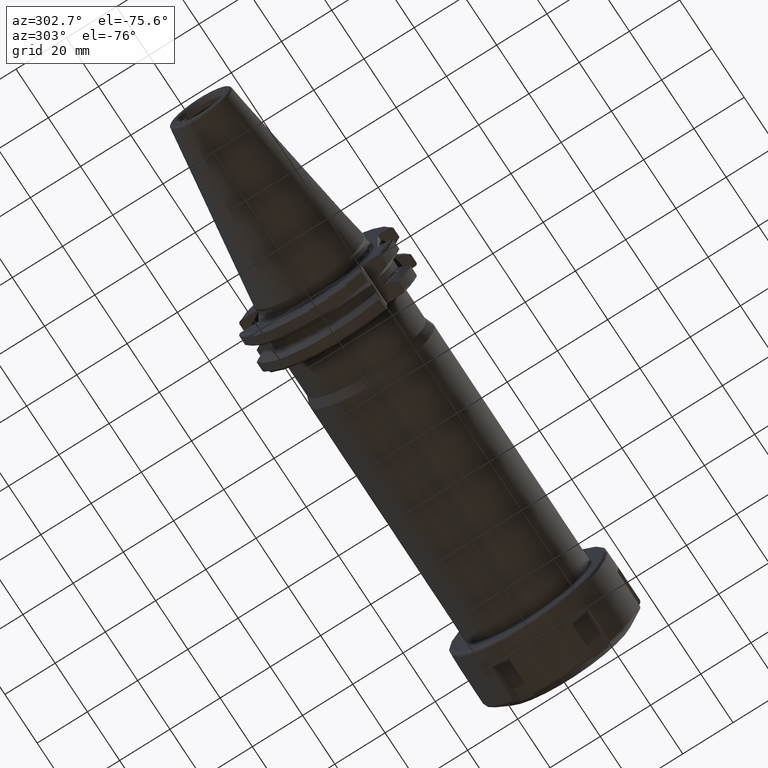
[diagram: clean part render]
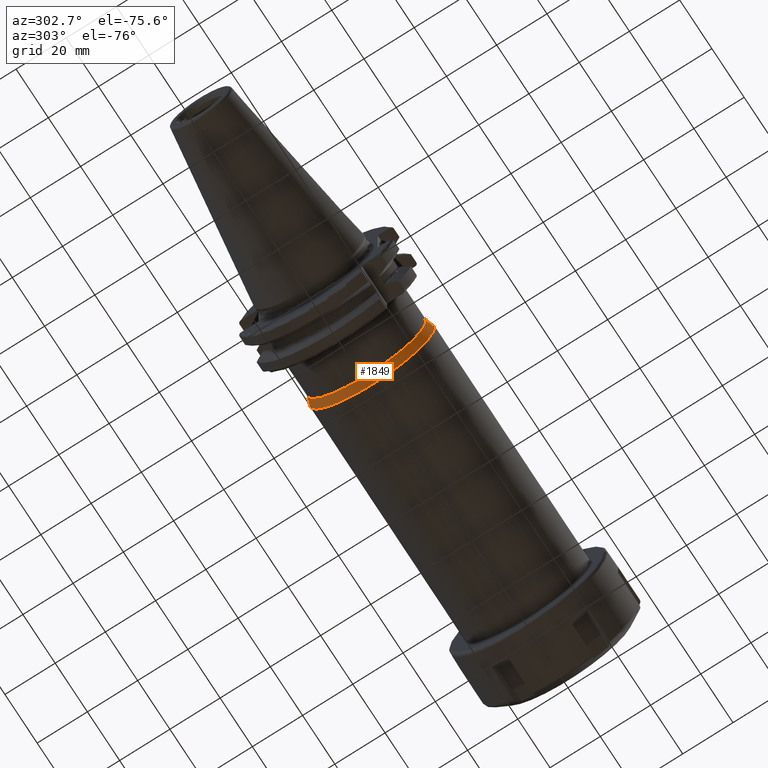
[diagram: same view with one face highlighted and labeled with its STEP entity id]
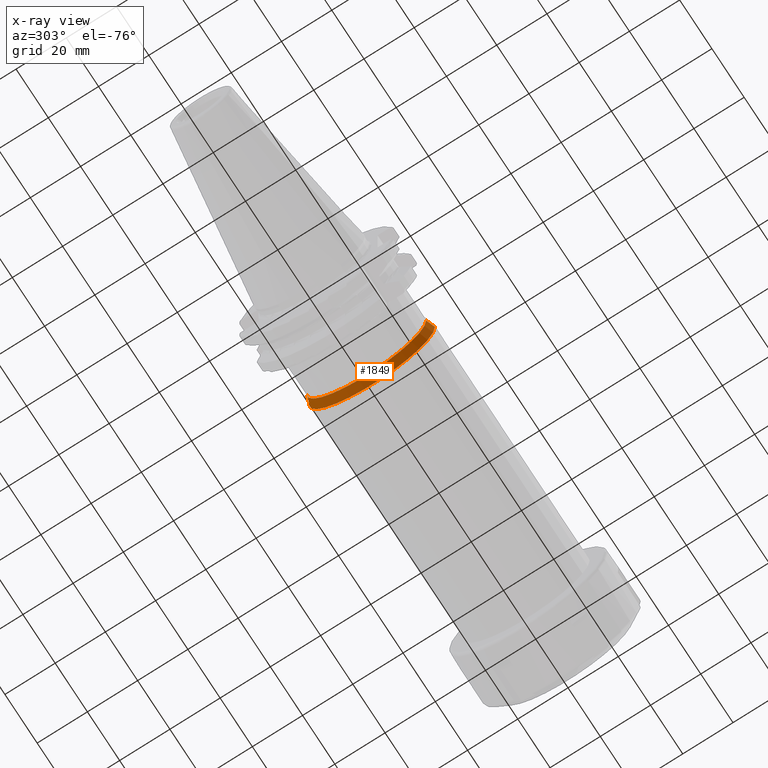
[diagram: x-ray of the same camera — body ghosted, the highlighted face saturated]
A machine part, auxiliary view. The second image highlights one B-rep face of the part: STEP entity #1849.
The next image is the same camera in x-ray: the body ghosted, the highlighted face saturated — about 0% of this face is hidden behind the body in this view.
In plain terms, the highlighted conical surface has half-angle 20 deg.
Its self-contained STEP definition (entity closure, byte-faithful):
#238=CARTESIAN_POINT('',(3.505E1,0.E0,0.E0));
#239=DIRECTION('',(-1.E0,0.E0,0.E0));
#240=DIRECTION('',(0.E0,1.E0,0.E0));
#241=AXIS2_PLACEMENT_3D('',#238,#239,#240);
#251=DIRECTION('',(-9.396926207859E-1,-3.420201433257E-1,0.E0));
#252=VECTOR('',#251,3.654755500204E0);
#253=CARTESIAN_POINT('',(3.848434677432E1,2.5E1,0.E0));
#254=LINE('',#253,#252);
#255=DIRECTION('',(-9.396926207859E-1,3.420201433257E-1,0.E0));
#256=VECTOR('',#255,3.654755500204E0);
#257=CARTESIAN_POINT('',(3.848434677432E1,-2.5E1,0.E0));
#258=LINE('',#257,#256);
#259=CARTESIAN_POINT('',(3.848434677432E1,0.E0,0.E0));
#260=DIRECTION('',(-1.E0,0.E0,0.E0));
#261=DIRECTION('',(0.E0,1.E0,0.E0));
#262=AXIS2_PLACEMENT_3D('',#259,#260,#261);
#1478=CARTESIAN_POINT('',(3.848434677432E1,2.5E1,0.E0));
#1479=CARTESIAN_POINT('',(3.505E1,2.375E1,0.E0));
#1480=VERTEX_POINT('',#1478);
#1481=VERTEX_POINT('',#1479);
#1484=CARTESIAN_POINT('',(3.848434677432E1,-2.5E1,0.E0));
#1485=CARTESIAN_POINT('',(3.505E1,-2.375E1,0.E0));
#1486=VERTEX_POINT('',#1484);
#1487=VERTEX_POINT('',#1485);
#1835=CARTESIAN_POINT('',(3.676717338716E1,0.E0,0.E0));
#1836=DIRECTION('',(1.E0,0.E0,0.E0));
#1837=DIRECTION('',(0.E0,-1.E0,0.E0));
#1838=AXIS2_PLACEMENT_3D('',#1835,#1836,#1837);
#1839=CONICAL_SURFACE('',#1838,2.4375E1,2.E1);
#1841=ORIENTED_EDGE('',*,*,#1840,.T.);
#1842=ORIENTED_EDGE('',*,*,#1827,.T.);
#1844=ORIENTED_EDGE('',*,*,#1843,.F.);
#1846=ORIENTED_EDGE('',*,*,#1845,.F.);
#1847=EDGE_LOOP('',(#1841,#1842,#1844,#1846));
#1848=FACE_OUTER_BOUND('',#1847,.F.);
#1849=ADVANCED_FACE('',(#1848),#1839,.T.);
#242=CIRCLE('',#241,2.375E1);
#263=CIRCLE('',#262,2.5E1);
#1827=EDGE_CURVE('',#1481,#1487,#242,.T.);
#1840=EDGE_CURVE('',#1480,#1481,#254,.T.);
#1843=EDGE_CURVE('',#1486,#1487,#258,.T.);
#1845=EDGE_CURVE('',#1480,#1486,#263,.T.);